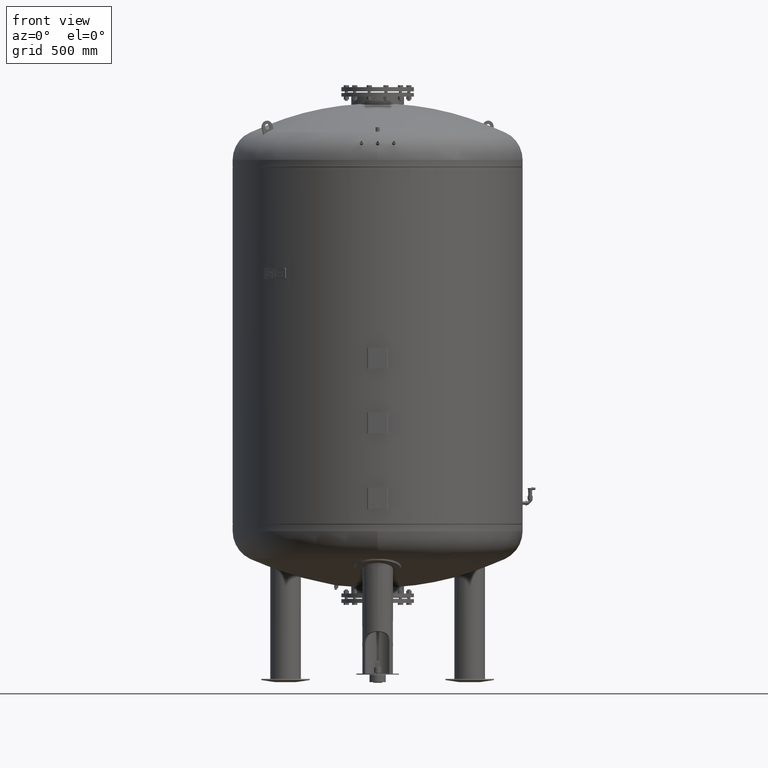
[diagram: clean part render]
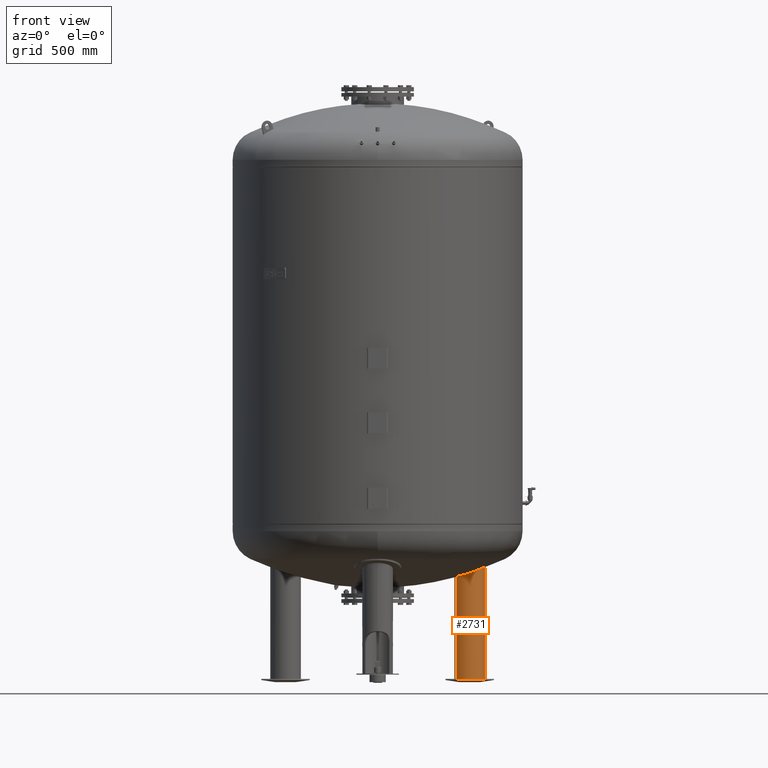
[diagram: same view with one face highlighted and labeled with its STEP entity id]
A machine part, front view. The second image highlights one B-rep face of the part: STEP entity #2731.
In plain terms, the highlighted cylindrical surface (edge-blend (fillet) strip) has radius 79.5 mm, axis along (-0, 0, -1).
Its self-contained STEP definition (entity closure, byte-faithful):
#2321=CARTESIAN_POINT('',(545.162991682304100,314.749999999999940,11.631170282581067));
#2322=VERTEX_POINT('',#2321);
#2323=CARTESIAN_POINT('',(545.162991682304780,314.750000000000170,619.974328976416250));
#2324=VERTEX_POINT('',#2323);
#2325=CARTESIAN_POINT('',(545.162991682304100,314.749999999999940,11.631170282581067));
#2326=DIRECTION('',(0.0,0.0,1.0));
#2327=VECTOR('',#2326,608.343158693835220);
#2328=LINE('',#2325,#2327);
#2329=EDGE_CURVE('',#2322,#2324,#2328,.T.);
#2331=CARTESIAN_POINT('',(407.464952480578400,235.249999999999940,11.631170282581067));
#2332=VERTEX_POINT('',#2331);
#2340=CARTESIAN_POINT('',(407.464952480578400,235.249999999999830,557.801446445446690));
#2341=VERTEX_POINT('',#2340);
#2342=CARTESIAN_POINT('',(407.464952480578400,235.249999999999940,11.631170282581067));
#2343=DIRECTION('',(0.0,0.0,1.0));
#2344=VECTOR('',#2343,546.170276162865660);
#2345=LINE('',#2342,#2344);
#2346=EDGE_CURVE('',#2332,#2341,#2345,.T.);
#2428=CARTESIAN_POINT('',(515.420540091886320,205.783482184925930,588.259208461118190));
#2429=VERTEX_POINT('',#2428);
#2430=CARTESIAN_POINT('',(515.420540091886320,205.783482184925930,588.259208461118190));
#2431=CARTESIAN_POINT('',(507.708228941500240,201.426111573967490,584.797146556691930));
#2432=CARTESIAN_POINT('',(499.283486312880770,198.366555777918450,581.360502151041940));
#2433=CARTESIAN_POINT('',(479.925573561073750,194.860951505136200,574.174236989335670));
#2434=CARTESIAN_POINT('',(468.965119054899450,195.082291216989630,570.549958778381670));
#2435=CARTESIAN_POINT('',(448.359184238433670,199.884482817816460,564.600364334074580));
#2436=CARTESIAN_POINT('',(438.859336090417680,204.104772989114170,562.252334812652180));
#2437=CARTESIAN_POINT('',(422.302850190856590,215.836268519620490,559.003880738072780));
#2438=CARTESIAN_POINT('',(415.336604423659480,223.022492172788420,558.070588206412370));
#2439=CARTESIAN_POINT('',(409.021872087655820,232.640314101676950,557.818088260262240));
#2440=CARTESIAN_POINT('',(408.224060820283850,233.935185787180760,557.801446445446690));
#2441=CARTESIAN_POINT('',(407.464952480578400,235.249999999999830,557.801446445446690));
#2442=B_SPLINE_CURVE_WITH_KNOTS('',3,(#2430,#2431,#2432,#2433,#2434,#2435,#2436,#2437,#2438,#2439,#2440,#2441),.UNSPECIFIED.,.F.,.U.,(4,2,2,2,2,4),(13.058196146459961,15.908544671985489,19.326182717890447,22.493256912797680,25.489178793934588,25.946274642103887),.UNSPECIFIED.);
#2443=EDGE_CURVE('',#2429,#2341,#2442,.T.);
#2694=CARTESIAN_POINT('',(545.162991682304210,314.749999999999830,619.974328976416360));
#2695=CARTESIAN_POINT('',(549.959092765766400,306.442909245206580,619.974328976416020));
#2696=CARTESIAN_POINT('',(553.188852139110510,297.378552472938000,619.280247607236110));
#2697=CARTESIAN_POINT('',(556.329116497824770,278.439221662717160,616.585819491894090));
#2698=CARTESIAN_POINT('',(556.134967740473370,268.779055016763780,614.592514188904490));
#2699=CARTESIAN_POINT('',(552.308019648920090,249.549274365694940,609.453155597640030));
#2700=CARTESIAN_POINT('',(548.478270259849300,240.209973609872860,606.286372499794770));
#2701=CARTESIAN_POINT('',(537.320267391746820,222.915168943893150,599.055880090259170));
#2702=CARTESIAN_POINT('',(529.808676421816360,215.249135725733620,594.989155554557560));
#2703=CARTESIAN_POINT('',(519.240728592011920,208.048608236553090,589.995750597807050));
#2704=CARTESIAN_POINT('',(517.352997851607820,206.875299473535680,589.126690109794940));
#2705=CARTESIAN_POINT('',(515.420540091886320,205.783482184925930,588.259208461118190));
#2706=B_SPLINE_CURVE_WITH_KNOTS('',3,(#2694,#2695,#2696,#2697,#2698,#2699,#2700,#2701,#2702,#2703,#2704,#2705),.UNSPECIFIED.,.F.,.U.,(4,2,2,2,2,4),(0.0,2.877660650077480,5.813761654146234,8.951189755024860,12.343990246483170,13.058196146459961),.UNSPECIFIED.);
#2707=EDGE_CURVE('',#2324,#2429,#2706,.T.);
#2713=CARTESIAN_POINT('',(476.313972081441250,274.999999999999940,15.815585141290533));
#2714=DIRECTION('',(-9.184851E-017,1.590863E-016,-1.0));
#2715=DIRECTION('',(0.866025403784439,0.500000000000000,0.0));
#2716=AXIS2_PLACEMENT_3D('',#2713,#2714,#2715);
#2717=CYLINDRICAL_SURFACE('',#2716,79.500000000000000);
#2718=ORIENTED_EDGE('',*,*,#2329,.T.);
#2719=ORIENTED_EDGE('',*,*,#2707,.T.);
#2720=ORIENTED_EDGE('',*,*,#2443,.T.);
#2721=ORIENTED_EDGE('',*,*,#2346,.F.);
#2722=CARTESIAN_POINT('',(476.313972081441250,274.999999999999940,11.631170282581067));
#2723=DIRECTION('',(0.0,0.0,-1.0));
#2724=DIRECTION('',(0.866025403784439,0.500000000000000,0.0));
#2725=AXIS2_PLACEMENT_3D('',#2722,#2723,#2724);
#2726=CIRCLE('',#2725,79.500000000000000);
#2727=EDGE_CURVE('',#2322,#2332,#2726,.T.);
#2728=ORIENTED_EDGE('',*,*,#2727,.F.);
#2729=EDGE_LOOP('',(#2718,#2719,#2720,#2721,#2728));
#2730=FACE_OUTER_BOUND('',#2729,.T.);
#2731=ADVANCED_FACE('',(#2730),#2717,.T.);